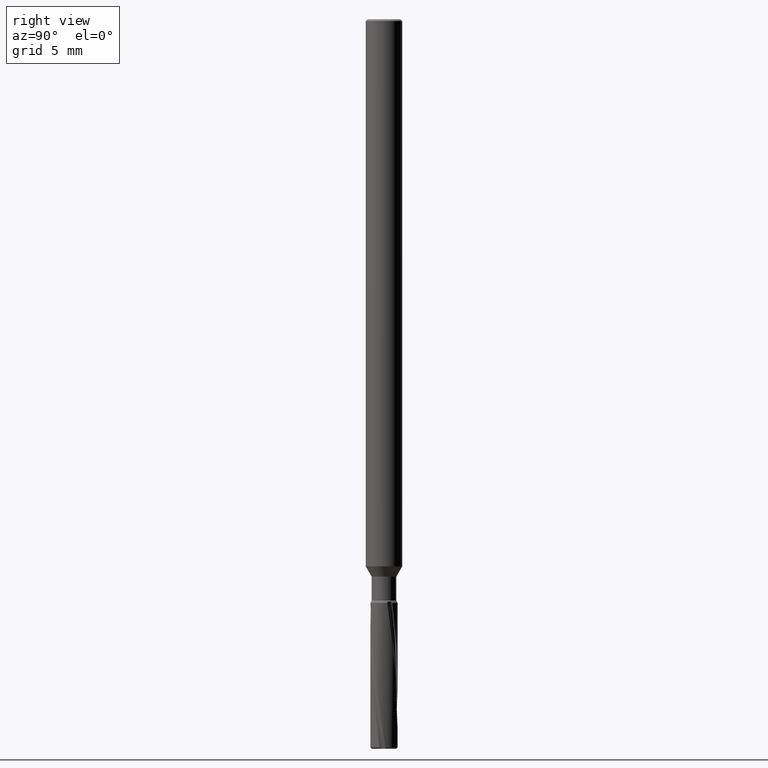
[diagram: clean part render]
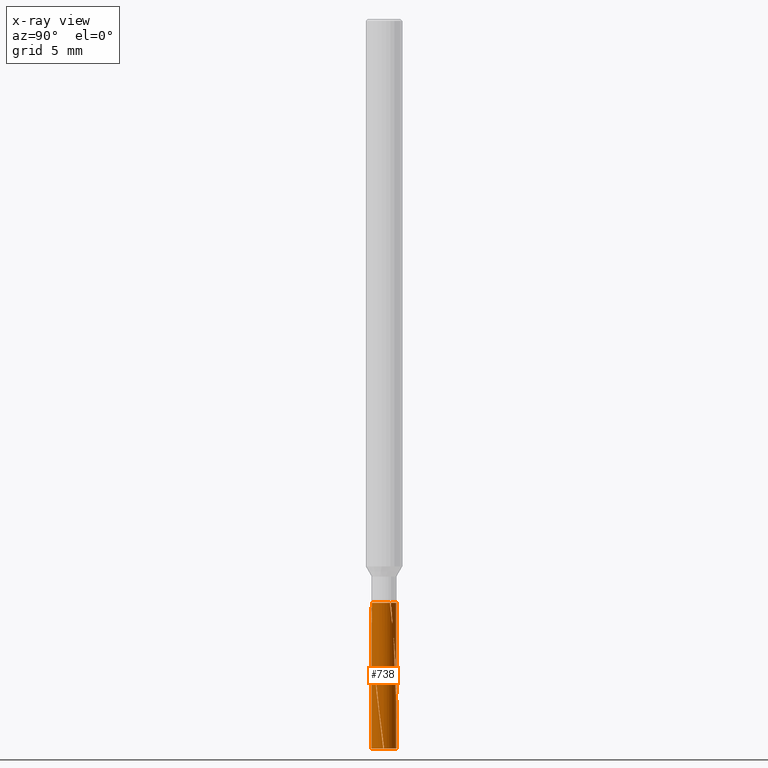
[diagram: x-ray — body ghosted, one internal face saturated and labeled with its STEP entity id]
A machine part, right view, then the same camera in x-ray: the body is ghosted and one INTERNAL B-rep face — a face not visible from any outside direction — is saturated and labeled: STEP entity #738.
In plain terms, the highlighted cylindrical surface (edge-blend (fillet) strip) has radius 0.675 mm, axis along (-0, -0, 1).
Its self-contained STEP definition (entity closure, byte-faithful):
#424=VERTEX_POINT('',#1221);
#436=EDGE_CURVE('',#546,#1036,#1234,.T.);
#478=VERTEX_POINT('',#1279);
#490=EDGE_CURVE('',#424,#940,#1293,.T.);
#512=VERTEX_POINT('',#1318);
#546=VERTEX_POINT('',#1356);
#554=EDGE_CURVE('',#776,#940,#1365,.T.);
#598=VERTEX_POINT('',#1414);
#682=EDGE_CURVE('',#716,#1156,#1501,.T.);
#716=VERTEX_POINT('',#1540);
#730=VERTEX_POINT('',#1554);
#738=ADVANCED_FACE('',(#1563),#1564,.T.);
#756=EDGE_CURVE('',#424,#730,#1584,.T.);
#776=VERTEX_POINT('',#1605);
#782=EDGE_CURVE('',#1156,#1040,#1612,.T.);
#844=EDGE_CURVE('',#730,#478,#1679,.T.);
#940=VERTEX_POINT('',#1784);
#962=EDGE_CURVE('',#716,#478,#1806,.T.);
#1036=VERTEX_POINT('',#1890);
#1038=EDGE_CURVE('',#1036,#598,#1892,.T.);
#1040=VERTEX_POINT('',#1894);
#1062=VERTEX_POINT('',#1917);
#1094=EDGE_CURVE('',#776,#546,#1954,.T.);
#1106=EDGE_CURVE('',#598,#512,#1967,.T.);
#1156=VERTEX_POINT('',#2021);
#1160=EDGE_CURVE('',#1062,#1040,#2025,.T.);
#1186=EDGE_CURVE('',#512,#1062,#2055,.T.);
#1221=CARTESIAN_POINT('',(-7.28329051414029E-016,0.675,-37.5329262624349));
#1234=B_SPLINE_CURVE_WITH_KNOTS('',3,(#2097,#2098,#2099,#2100,#2101,#2102,#2103,#2104,#2105,#2106,#2107,#2108,#2109,#2110,#2111,#2112,#2113,#2114,#2115,#2116),.UNSPECIFIED.,.F.,.F.,(4,2,2,2,2,2,2,2,2,4),(0.0,0.0326887155101819,0.0436933603518113,0.0505271209389443,0.0567795461319745,0.0648827188236405,0.0818648894988558,0.121388327816613,0.274718887182162,0.569397161582268),.UNSPECIFIED.);
#1279=CARTESIAN_POINT('',(0.674990133403159,0.00364963126717744,-40.0));
#1293=B_SPLINE_CURVE_WITH_KNOTS('',3,(#2364,#2365,#2366,#2367,#2368,#2369,#2370,#2371,#2372,#2373,#2374,#2375,#2376,#2377,#2378,#2379,#2380,#2381,#2382,#2383,#2384,#2385,#2386,#2387,#2388,#2389,#2390,#2391,#2392,#2393,#2394,#2395,#2396,#2397,#2398,#2399,#2400,#2401,#2402,#2403,#2404,#2405,#2406,#2407,#2408,#2409,#2410,#2411,#2412,#2413,#2414,#2415,#2416,#2417,#2418,#2419,#2420,#2421,#2422,#2423,#2424,#2425,#2426,#2427),.UNSPECIFIED.,.F.,.F.,(4,2,2,2,2,2,2,2,2,2,2,2,2,2,2,2,2,2,2,2,2,2,2,2,2,2,2,2,2,2,2,4),(0.0,0.18688365082122,1.3727734235625,1.61110717804749,1.68792852125721,3.36986477059284,4.53313753460929,4.74420470655328,4.80386000082122,5.83672365668107,7.47961476231981,7.54406057368269,7.71255624952377,7.74873452194383,7.75640811296588,7.75974917333288,7.76186138992929,7.76367922971296,7.76577143902104,7.76929361014023,7.7773543054012,7.80875288426856,7.92520435699458,8.45160062297915,11.6702423036027,13.2479136617163,13.3938124384258,18.8430458293485,20.1106188462336,20.378343101451,20.5334103536752,23.8542558613937),.UNSPECIFIED.);
#1318=CARTESIAN_POINT('',(0.0348243879405621,-0.67410107699407,-32.0));
#1356=CARTESIAN_POINT('',(0.566376463425032,0.367209343124808,-32.0));
#1365=LINE('',#2694,#2695);
#1414=CARTESIAN_POINT('',(0.591460125520511,0.325268996246586,-32.0));
#1501=CIRCLE('',#3252,0.675);
#1540=CARTESIAN_POINT('',(0.674055319975229,-0.0356990982111893,-40.0));
#1554=CARTESIAN_POINT('',(-8.27571098544261E-017,0.675,-40.0));
#1563=FACE_OUTER_BOUND('',#3599,.T.);
#1564=CYLINDRICAL_SURFACE('',#3600,0.675);
#1584=LINE('',#3650,#3651);
#1605=CARTESIAN_POINT('',(-8.27571098544261E-017,0.675,-32.0));
#1612=LINE('',#3703,#3704);
#1679=CIRCLE('',#4041,0.675);
#1784=CARTESIAN_POINT('',(1.58673197800216E-017,0.675,-37.279835173833));
#1806=B_SPLINE_CURVE_WITH_KNOTS('',3,(#4744,#4745,#4746,#4747,#4748,#4749,#4750,#4751,#4752,#4753,#4754,#4755,#4756,#4757,#4758,#4759,#4760,#4761,#4762,#4763,#4764,#4765,#4766,#4767,#4768,#4769,#4770,#4771,#4772,#4773,#4774,#4775,#4776,#4777,#4778,#4779,#4780,#4781,#4782,#4783,#4784,#4785,#4786,#4787,#4788,#4789,#4790,#4791,#4792,#4793,#4794,#4795,#4796,#4797,#4798,#4799,#4800,#4801,#4802,#4803,#4804,#4805,#4806,#4807),.UNSPECIFIED.,.F.,.F.,(4,2,2,2,2,2,2,2,2,2,2,2,2,2,2,2,2,2,2,2,2,2,2,2,2,2,2,2,2,2,2,4),(0.0,0.186883650820034,1.37277342363579,1.61110717814689,1.68792852135125,3.36986476909886,4.53313753450786,4.74420470775815,4.80386000202086,5.83672365814529,7.47961477057735,7.54406057829322,7.71255625515732,7.74873452795476,7.75640811908151,7.75974917953146,7.76186139618625,7.76367923601054,7.76577144534101,7.76929361650332,7.77735431193313,7.80875289149383,7.92520436791574,8.45160065248507,11.6702425463276,13.2479140305596,13.393812828255,18.84304701219,20.1106202143737,20.378344505153,20.5334117802108,23.854257777214),.UNSPECIFIED.);
#1890=CARTESIAN_POINT('',(0.520378007290252,0.429920608401862,-32.5758084354064));
#1892=B_SPLINE_CURVE_WITH_KNOTS('',3,(#5424,#5425,#5426,#5427,#5428,#5429,#5430,#5431,#5432,#5433,#5434,#5435,#5436,#5437,#5438,#5439,#5440,#5441,#5442,#5443,#5444,#5445,#5446,#5447,#5448,#5449,#5450,#5451,#5452,#5453,#5454,#5455),.UNSPECIFIED.,.F.,.F.,(4,2,2,2,2,2,2,2,2,2,2,2,2,2,2,4),(0.0,0.648607326009277,0.738515433763604,0.777237180380298,0.785516823060001,0.790513482183709,0.794487839739592,0.798677317567517,0.805140761584447,0.818639120883314,0.85592075019587,1.03133985294063,1.48318396346145,1.96540922597763,2.2872874393332,2.49005612077731),.UNSPECIFIED.);
#1894=CARTESIAN_POINT('',(1.03884199502532E-010,-0.675,-32.2620542307267));
#1917=CARTESIAN_POINT('',(0.112133164841339,-0.665620878085014,-32.5758084354063));
#1954=CIRCLE('',#5598,0.675);
#1967=CIRCLE('',#5623,0.675);
#2021=CARTESIAN_POINT('',(8.25647479115948E-017,-0.675,-40.0));
#2025=B_SPLINE_CURVE_WITH_KNOTS('',3,(#5862,#5863,#5864,#5865,#5866,#5867,#5868,#5869,#5870,#5871,#5872,#5873,#5874,#5875,#5876,#5877,#5878,#5879,#5880,#5881,#5882,#5883,#5884,#5885,#5886,#5887,#5888,#5889,#5890,#5891,#5892,#5893),.UNSPECIFIED.,.F.,.F.,(4,2,2,2,2,2,2,2,2,2,2,2,2,2,2,4),(0.0,0.648607326049933,0.738515433743711,0.777237180492468,0.78551682324469,0.790513482428083,0.794487840020776,0.798677317882341,0.805140761949093,0.818639120784048,0.855920746827237,1.03133983486009,1.48318390752518,1.96540913078921,2.28728731825914,2.49005598333297),.UNSPECIFIED.);
#2055=B_SPLINE_CURVE_WITH_KNOTS('',3,(#6333,#6334,#6335,#6336,#6337,#6338,#6339,#6340,#6341,#6342,#6343,#6344,#6345,#6346,#6347,#6348,#6349,#6350,#6351,#6352),.UNSPECIFIED.,.F.,.F.,(4,2,2,2,2,2,2,2,2,4),(0.0,0.0326887155095948,0.0436933603510671,0.050527120937797,0.0567795461317392,0.0648827188332502,0.081864889526675,0.12138832788119,0.274718887386551,0.569397162141511),.UNSPECIFIED.);
#2097=CARTESIAN_POINT('',(0.566376463425034,0.367209343124805,-32.0));
#2098=CARTESIAN_POINT('',(0.564995976323239,0.369338579259881,-32.0105966325956));
#2099=CARTESIAN_POINT('',(0.563690315520645,0.37132595606166,-32.021552079504));
#2100=CARTESIAN_POINT('',(0.562082049310962,0.373750326759119,-32.0358125802805));
#2101=CARTESIAN_POINT('',(0.561683732122727,0.374348608085845,-32.0394149926998));
#2102=CARTESIAN_POINT('',(0.561050054828501,0.375297251496393,-32.0452463257773));
#2103=CARTESIAN_POINT('',(0.560809657943883,0.375656372163217,-32.047482861879));
#2104=CARTESIAN_POINT('',(0.560354092659972,0.376335546444806,-32.0517643828934));
#2105=CARTESIAN_POINT('',(0.560138259284869,0.376656710002238,-32.0538119073311));
#2106=CARTESIAN_POINT('',(0.559647122499928,0.377386200975074,-32.0585120951291));
#2107=CARTESIAN_POINT('',(0.559372706230994,0.377792813850663,-32.0611685049275));
#2108=CARTESIAN_POINT('',(0.558532457597435,0.379034991166557,-32.0693885485697));
#2109=CARTESIAN_POINT('',(0.557974069440924,0.379856389905297,-32.0749749021695));
#2110=CARTESIAN_POINT('',(0.556155672624992,0.382519221219837,-32.0935177272636));
#2111=CARTESIAN_POINT('',(0.554923692123275,0.384303193583127,-32.1066640223231));
#2112=CARTESIAN_POINT('',(0.549172236356812,0.392554198947264,-32.1700968551724));
#2113=CARTESIAN_POINT('',(0.544799316070066,0.398571730382357,-32.2249434618753));
#2114=CARTESIAN_POINT('',(0.533648759864727,0.413514687946311,-32.372772853297));
#2115=CARTESIAN_POINT('',(0.526607592468429,0.422380288092619,-32.4776281244408));
#2116=CARTESIAN_POINT('',(0.520378005573022,0.429920610480404,-32.5758084537545));
#2364=CARTESIAN_POINT('',(-0.306111334044527,0.601598579760192,-40.0));
#2365=CARTESIAN_POINT('',(-0.298917820590169,0.605258854358677,-39.9382305354738));
#2366=CARTESIAN_POINT('',(-0.291719319213028,0.608759310517538,-39.8764481988167));
#2367=CARTESIAN_POINT('',(-0.238822994271213,0.633346484182818,-39.4225768208358));
#2368=CARTESIAN_POINT('',(-0.195967696284975,0.647373069784056,-39.0492320597075));
#2369=CARTESIAN_POINT('',(-0.14539742283085,0.659211748605653,-38.6386823360381));
#2370=CARTESIAN_POINT('',(-0.137372567853746,0.660931047582401,-38.5749600697742));
#2371=CARTESIAN_POINT('',(-0.126051274432987,0.663131947416539,-38.4866034481399));
#2372=CARTESIAN_POINT('',(-0.123278530059172,0.663653086871441,-38.4650744840084));
#2373=CARTESIAN_POINT('',(-0.0595017738202448,0.675223578659836,-37.9720615934379));
#2374=CARTESIAN_POINT('',(0.00395696025746203,0.678382453767125,-37.5122904337169));
#2375=CARTESIAN_POINT('',(0.117964157105742,0.666263241627631,-36.6140669471462));
#2376=CARTESIAN_POINT('',(0.163892727554099,0.65647105069893,-36.2379621343668));
#2377=CARTESIAN_POINT('',(0.216480837816007,0.639400615349966,-35.8067246313327));
#2378=CARTESIAN_POINT('',(0.224584634863706,0.63660141321084,-35.7402800449567));
#2379=CARTESIAN_POINT('',(0.2349850713556,0.632781934746832,-35.6553431519858));
#2380=CARTESIAN_POINT('',(0.237279667707738,0.631925152842991,-35.6366252323828));
#2381=CARTESIAN_POINT('',(0.27935645629978,0.615950835300278,-35.2938862970537));
#2382=CARTESIAN_POINT('',(0.310542416166225,0.600509234232039,-35.0577617310832));
#2383=CARTESIAN_POINT('',(0.394705452248086,0.550847272012725,-34.3390366159136));
#2384=CARTESIAN_POINT('',(0.418747706971145,0.529467231842818,-34.0433306077185));
#2385=CARTESIAN_POINT('',(0.425013712081315,0.524393399237277,-33.9205030633501));
#2386=CARTESIAN_POINT('',(0.425240078359487,0.524209825339578,-33.9157648107533));
#2387=CARTESIAN_POINT('',(0.42595676554486,0.523627997489992,-33.8989923145789));
#2388=CARTESIAN_POINT('',(0.426380599603663,0.523282711811539,-33.8853702694466));
#2389=CARTESIAN_POINT('',(0.42594656981291,0.523635874866674,-33.8759983475619));
#2390=CARTESIAN_POINT('',(0.425799480832561,0.523755640083947,-33.8738351185152));
#2391=CARTESIAN_POINT('',(0.425413339040877,0.524069173432309,-33.8722877231791));
#2392=CARTESIAN_POINT('',(0.425327989616857,0.524138455279709,-33.8720157946028));
#2393=CARTESIAN_POINT('',(0.425174108484049,0.524263274592998,-33.8717214308749));
#2394=CARTESIAN_POINT('',(0.425117362025103,0.524309294172689,-33.8716335353295));
#2395=CARTESIAN_POINT('',(0.425007913317574,0.52439801353118,-33.8715280457017));
#2396=CARTESIAN_POINT('',(0.424961196705166,0.524435873726263,-33.8714962600726));
#2397=CARTESIAN_POINT('',(0.424865778102536,0.524513177931539,-33.8714644001171));
#2398=CARTESIAN_POINT('',(0.424821061556868,0.524549396185705,-33.8714614560153));
#2399=CARTESIAN_POINT('',(0.424723861169557,0.524628102785167,-33.8714784715872));
#2400=CARTESIAN_POINT('',(0.424673954839127,0.524668500762786,-33.8715014834623));
#2401=CARTESIAN_POINT('',(0.424548598737225,0.524769947257985,-33.8715840645047));
#2402=CARTESIAN_POINT('',(0.424475477892416,0.524829091522443,-33.8716602559502));
#2403=CARTESIAN_POINT('',(0.424267098438288,0.52499758471936,-33.871919786358));
#2404=CARTESIAN_POINT('',(0.424129587892179,0.52510867143224,-33.8721687708107));
#2405=CARTESIAN_POINT('',(0.423537806028128,0.525586427838193,-33.8734090970931));
#2406=CARTESIAN_POINT('',(0.423031206443767,0.525994301688907,-33.8750689581805));
#2407=CARTESIAN_POINT('',(0.420688413174049,0.527874850605052,-33.8841368354343));
#2408=CARTESIAN_POINT('',(0.418480231566172,0.529625273913401,-33.8968536262749));
#2409=CARTESIAN_POINT('',(0.4102037880035,0.536126968582766,-33.946813206353));
#2410=CARTESIAN_POINT('',(0.401683743638111,0.542518217391684,-34.0107245417512));
#2411=CARTESIAN_POINT('',(0.360595458569241,0.572273443733052,-34.3261625918786));
#2412=CARTESIAN_POINT('',(0.321354858673633,0.595442679006738,-34.6976107981025));
#2413=CARTESIAN_POINT('',(0.257753486508225,0.624272169688859,-35.2767112583261));
#2414=CARTESIAN_POINT('',(0.235349511335088,0.633192476714737,-35.470876817268));
#2415=CARTESIAN_POINT('',(0.207940199867554,0.642177417039983,-35.6920013050224));
#2416=CARTESIAN_POINT('',(0.205609421213422,0.642927517298415,-35.7107161459186));
#2417=CARTESIAN_POINT('',(0.115835148990476,0.671278022506067,-36.4284729553327));
#2418=CARTESIAN_POINT('',(0.0226615488367514,0.681641448229023,-37.0905867826843));
#2419=CARTESIAN_POINT('',(-0.0968964665145076,0.668394639771295,-38.0396906481326));
#2420=CARTESIAN_POINT('',(-0.119207044805259,0.664777176005508,-38.2193497675649));
#2421=CARTESIAN_POINT('',(-0.146058366604559,0.659025707792346,-38.4325555668686));
#2422=CARTESIAN_POINT('',(-0.150760133340368,0.657966514252964,-38.4697615290123));
#2423=CARTESIAN_POINT('',(-0.158217938765753,0.656201177183451,-38.5284755362165));
#2424=CARTESIAN_POINT('',(-0.160961095388814,0.655533810029514,-38.5500083440551));
#2425=CARTESIAN_POINT('',(-0.222661859132236,0.640108404858419,-39.0326663757317));
#2426=CARTESIAN_POINT('',(-0.281400607310564,0.617373277056994,-39.4674837070184));
#2427=CARTESIAN_POINT('',(-0.340655740093408,0.582733787197389,-40.0));
#2694=CARTESIAN_POINT('',(-8.27571098544261E-017,0.675,-36.0));
#2695=VECTOR('',#6525,1.0);
#3252=AXIS2_PLACEMENT_3D('',#6647,#6648,#6649);
#3599=EDGE_LOOP('',(#6714,#6715,#6716,#6717,#6718,#6719,#6720,#6721,#6722,#6723,#6724,#6725,#6726));
#3600=AXIS2_PLACEMENT_3D('',#6727,#6728,#6729);
#3650=CARTESIAN_POINT('',(-8.27571098544261E-017,0.675,-36.0));
#3651=VECTOR('',#6756,1.0);
#3703=CARTESIAN_POINT('',(8.25647479115948E-017,-0.675,-36.0));
#3704=VECTOR('',#6796,1.0);
#4041=AXIS2_PLACEMENT_3D('',#6861,#6862,#6863);
#4744=CARTESIAN_POINT('',(0.674055319975229,-0.0356990982111892,-40.0));
#4745=CARTESIAN_POINT('',(0.673628454035167,-0.0437590009043197,-39.9382305354742));
#4746=CARTESIAN_POINT('',(0.673060687304869,-0.051743314047077,-39.8764481988051));
#4747=CARTESIAN_POINT('',(0.667905641836021,-0.109846462038644,-39.4225768208829));
#4748=CARTESIAN_POINT('',(0.658625372300927,-0.153973531589112,-39.0492320596999));
#4749=CARTESIAN_POINT('',(0.643592832181946,-0.203688012483776,-38.6386823360607));
#4750=CARTESIAN_POINT('',(0.641069361283564,-0.211497390245392,-38.5749600697853));
#4751=CARTESIAN_POINT('',(0.637314749740258,-0.222402367869913,-38.4866034481398));
#4752=CARTESIAN_POINT('',(0.636379697560281,-0.225064204663089,-38.4650744840099));
#4753=CARTESIAN_POINT('',(0.614511659280307,-0.286081741585227,-37.9720615938105));
#4754=CARTESIAN_POINT('',(0.585517958361355,-0.342618054897545,-37.5122904344708));
#4755=CARTESIAN_POINT('',(0.518018814373472,-0.435291577527565,-36.6140669479682));
#4756=CARTESIAN_POINT('',(0.486574243044368,-0.47017079083135,-36.2379621351788));
#4757=CARTESIAN_POINT('',(0.445496757278382,-0.507178212570704,-35.806724632341));
#4758=CARTESIAN_POINT('',(0.439020678541381,-0.512796705657359,-35.7402800454316));
#4759=CARTESIAN_POINT('',(0.430512694867017,-0.51989400867897,-35.6553431519678));
#4760=CARTESIAN_POINT('',(0.428623401798339,-0.521452796458081,-35.636625232381));
#4761=CARTESIAN_POINT('',(0.393750842692377,-0.549905205525109,-35.2938862969554));
#4762=CARTESIAN_POINT('',(0.364785043962838,-0.569192238473228,-35.057761731033));
#4763=CARTESIAN_POINT('',(0.279695004809528,-0.617248584796146,-34.3390366139276));
#4764=CARTESIAN_POINT('',(0.249158219498334,-0.627379768037192,-34.0433306050002));
#4765=CARTESIAN_POINT('',(0.241631149210895,-0.630269371262615,-33.9205030622308));
#4766=CARTESIAN_POINT('',(0.24135898643684,-0.630373623252039,-33.9157648099914));
#4767=CARTESIAN_POINT('',(0.24049676517583,-0.63070337862482,-33.8989923142791));
#4768=CARTESIAN_POINT('',(0.239985821990542,-0.630897786842482,-33.8853702693206));
#4769=CARTESIAN_POINT('',(0.240508685063723,-0.630698487545111,-33.8759983475305));
#4770=CARTESIAN_POINT('',(0.240685949274967,-0.630630987359987,-33.8738351184968));
#4771=CARTESIAN_POINT('',(0.241150548015324,-0.630453345433142,-33.8722877231705));
#4772=CARTESIAN_POINT('',(0.241253222567292,-0.630414071587408,-33.872015794596));
#4773=CARTESIAN_POINT('',(0.24143825983051,-0.630343216273638,-33.8717214308697));
#4774=CARTESIAN_POINT('',(0.241506487184485,-0.630317082188683,-33.8716335353264));
#4775=CARTESIAN_POINT('',(0.241638044755761,-0.630266656507083,-33.8715280457004));
#4776=CARTESIAN_POINT('',(0.241694190952672,-0.630245128831512,-33.8714962600718));
#4777=CARTESIAN_POINT('',(0.241808847659068,-0.630201146000472,-33.8714644001171));
#4778=CARTESIAN_POINT('',(0.241862571859559,-0.630180529463241,-33.8714614560152));
#4779=CARTESIAN_POINT('',(0.241979333968731,-0.630135704757944,-33.8714784715879));
#4780=CARTESIAN_POINT('',(0.242039272808893,-0.630112683596765,-33.8715014834632));
#4781=CARTESIAN_POINT('',(0.242189806102885,-0.630054845275185,-33.8715840645071));
#4782=CARTESIAN_POINT('',(0.242277586961518,-0.630021092897985,-33.8716602559539));
#4783=CARTESIAN_POINT('',(0.24252769607986,-0.629924877594623,-33.8719197863661));
#4784=CARTESIAN_POINT('',(0.24269265527014,-0.629861333324131,-33.8721687708237));
#4785=CARTESIAN_POINT('',(0.243402295392121,-0.629587713397176,-33.8734090971243));
#4786=CARTESIAN_POINT('',(0.244008824305237,-0.6293529222111,-33.8750689582336));
#4787=CARTESIAN_POINT('',(0.246808824109833,-0.628264278167947,-33.8841368356366));
#4788=CARTESIAN_POINT('',(0.249428826011955,-0.627227148435017,-33.8968536267519));
#4789=CARTESIAN_POINT('',(0.259197680710279,-0.623310385322759,-33.9468132078602));
#4790=CARTESIAN_POINT('',(0.268992686884334,-0.619127434790213,-34.0107245444969));
#4791=CARTESIAN_POINT('',(0.315305613533228,-0.598421548255565,-34.3261626107848));
#4792=CARTESIAN_POINT('',(0.354991061324805,-0.576022808139725,-34.6976108388261));
#4793=CARTESIAN_POINT('',(0.41175881796307,-0.535357149466883,-35.27671129368));
#4794=CARTESIAN_POINT('',(0.430686016331254,-0.520414892466914,-35.4708768344869));
#4795=CARTESIAN_POINT('',(0.452171857364598,-0.501170203707833,-35.6920013091966));
#4796=CARTESIAN_POINT('',(0.453986852568384,-0.499526740311518,-35.7107161500735));
#4797=CARTESIAN_POINT('',(0.523426246329142,-0.435955192526725,-36.4284729590141));
#4798=CARTESIAN_POINT('',(0.57898803623309,-0.360446200708428,-37.0905867861222));
#4799=CARTESIAN_POINT('',(0.627294971142816,-0.250282518118638,-38.0396906500787));
#4800=CARTESIAN_POINT('',(0.635317444755175,-0.22915225867961,-38.2193497693385));
#4801=CARTESIAN_POINT('',(0.643762188038544,-0.203022597849531,-38.4325555679345));
#4802=CARTESIAN_POINT('',(0.645195782872774,-0.198421151708962,-38.4697615295469));
#4803=CARTESIAN_POINT('',(0.647395858817004,-0.191079834286156,-38.5284755362167));
#4804=CARTESIAN_POINT('',(0.648189480219602,-0.188370507386954,-38.5500083440561));
#4805=CARTESIAN_POINT('',(0.66568106934982,-0.127223375965522,-39.0326663757419));
#4806=CARTESIAN_POINT('',(0.675361245204263,-0.0649865639527777,-39.4674837070526));
#4807=CARTESIAN_POINT('',(0.674990133403159,0.00364963126717752,-40.0));
#5424=CARTESIAN_POINT('',(0.520378007290252,0.429920608401862,-32.5758084354064));
#5425=CARTESIAN_POINT('',(0.506726421196505,0.446444554984053,-32.7909458085301));
#5426=CARTESIAN_POINT('',(0.495992983837324,0.457838465282403,-33.0121907906789));
#5427=CARTESIAN_POINT('',(0.496237454986139,0.457573371382949,-33.0918196044855));
#5428=CARTESIAN_POINT('',(0.496475291163137,0.457315792943366,-33.0987491276987));
#5429=CARTESIAN_POINT('',(0.497124241821415,0.456609867957342,-33.10495280417));
#5430=CARTESIAN_POINT('',(0.497394127681505,0.456316132864191,-33.106678584849));
#5431=CARTESIAN_POINT('',(0.497866045490453,0.455800851137778,-33.1078928541567));
#5432=CARTESIAN_POINT('',(0.497969255135456,0.455688111109924,-33.1081110204253));
#5433=CARTESIAN_POINT('',(0.498167820334405,0.455471003516935,-33.1083771859819));
#5434=CARTESIAN_POINT('',(0.498252234077065,0.455378667589898,-33.108461353768));
#5435=CARTESIAN_POINT('',(0.498422023224763,0.45519281541117,-33.1085539214677));
#5436=CARTESIAN_POINT('',(0.498499614487396,0.455107842657233,-33.1085721040552));
#5437=CARTESIAN_POINT('',(0.498663992458002,0.454927728639257,-33.1085614246552));
#5438=CARTESIAN_POINT('',(0.498745835682226,0.454837998408613,-33.108530294788));
#5439=CARTESIAN_POINT('',(0.498944189829844,0.454620421170581,-33.1084089936309));
#5440=CARTESIAN_POINT('',(0.499056893980196,0.45449668702993,-33.108294959805));
#5441=CARTESIAN_POINT('',(0.499364913819147,0.45415831885192,-33.1079133235786));
#5442=CARTESIAN_POINT('',(0.499563021476403,0.453940367494444,-33.1075564630619));
#5443=CARTESIAN_POINT('',(0.500230496702489,0.45320523123014,-33.1061504309028));
#5444=CARTESIAN_POINT('',(0.500707098619336,0.452678433906856,-33.1046841748268));
#5445=CARTESIAN_POINT('',(0.503010465397714,0.450126105880397,-33.0967135542835));
#5446=CARTESIAN_POINT('',(0.505496763575403,0.447348297542147,-33.0839982701566));
#5447=CARTESIAN_POINT('',(0.51664240233982,0.434574227253531,-33.0163882243357));
#5448=CARTESIAN_POINT('',(0.529029264263422,0.419769530440794,-32.9258199081179));
#5449=CARTESIAN_POINT('',(0.555289438345669,0.384441263488902,-32.6839471787144));
#5450=CARTESIAN_POINT('',(0.566678770468502,0.36709694809181,-32.5522376138222));
#5451=CARTESIAN_POINT('',(0.580754108705811,0.344188180938172,-32.3412662222957));
#5452=CARTESIAN_POINT('',(0.585537278499433,0.335869028956411,-32.2522633210283));
#5453=CARTESIAN_POINT('',(0.590386867190881,0.327235380378968,-32.1155449827957));
#5454=CARTESIAN_POINT('',(0.592004207105435,0.324279653375836,-32.0515185355069));
#5455=CARTESIAN_POINT('',(0.591460125520511,0.325268996246587,-32.0));
#5598=AXIS2_PLACEMENT_3D('',#7118,#7119,#7120);
#5623=AXIS2_PLACEMENT_3D('',#7128,#7129,#7130);
#5862=CARTESIAN_POINT('',(0.112133164841339,-0.665620878085014,-32.5758084354063));
#5863=CARTESIAN_POINT('',(0.133269115400493,-0.662060231016751,-32.7909458085435));
#5864=CARTESIAN_POINT('',(0.148503249849021,-0.658461756742394,-33.0121907907223));
#5865=CARTESIAN_POINT('',(0.148151436219296,-0.658540928018934,-33.0918196044991));
#5866=CARTESIAN_POINT('',(0.147809448658512,-0.658618110970392,-33.0987491277063));
#5867=CARTESIAN_POINT('',(0.146873624357259,-0.658827156233485,-33.1049528041803));
#5868=CARTESIAN_POINT('',(0.146484299374504,-0.65891401669788,-33.1066785848518));
#5869=CARTESIAN_POINT('',(0.145802093406923,-0.659065068645262,-33.1078928541564));
#5870=CARTESIAN_POINT('',(0.145652852856346,-0.659098080805808,-33.1081110204249));
#5871=CARTESIAN_POINT('',(0.145365549565688,-0.659161489515977,-33.1083771859819));
#5872=CARTESIAN_POINT('',(0.145243377436014,-0.659188425997997,-33.1084613537678));
#5873=CARTESIAN_POINT('',(0.144997530154522,-0.659242541623719,-33.1085539214674));
#5874=CARTESIAN_POINT('',(0.144885145959508,-0.659267251251338,-33.1085721040551));
#5875=CARTESIAN_POINT('',(0.144646973658812,-0.659319549740773,-33.1085614246553));
#5876=CARTESIAN_POINT('',(0.144528343387369,-0.659345562936778,-33.108530294788));
#5877=CARTESIAN_POINT('',(0.144240738898749,-0.659408554048413,-33.1084089936312));
#5878=CARTESIAN_POINT('',(0.144077229915161,-0.659444291635251,-33.1082949598064));
#5879=CARTESIAN_POINT('',(0.143630184567688,-0.659541860549467,-33.1079133235887));
#5880=CARTESIAN_POINT('',(0.143342379330476,-0.659604451133791,-33.1075564630838));
#5881=CARTESIAN_POINT('',(0.142371995022227,-0.659814933507097,-33.1061504309034));
#5882=CARTESIAN_POINT('',(0.141677474198931,-0.65996428421299,-33.104684174826));
#5883=CARTESIAN_POINT('',(0.138315409907685,-0.660682894342452,-33.0967135543045));
#5884=CARTESIAN_POINT('',(0.134666608237546,-0.661447187555274,-33.083998270207));
#5885=CARTESIAN_POINT('',(0.11803111950309,-0.664712558717547,-33.0163882245213));
#5886=CARTESIAN_POINT('',(0.0990164450378821,-0.66803754740578,-32.9258199084685));
#5887=CARTESIAN_POINT('',(0.0552911813744011,-0.673115391796923,-32.6839471793414));
#5888=CARTESIAN_POINT('',(0.0345758975464194,-0.674306685053075,-32.5522376143731));
#5889=CARTESIAN_POINT('',(0.00769865407260034,-0.675041901960227,-32.3412662227525));
#5890=CARTESIAN_POINT('',(-0.0018975278020573,-0.675024672521713,-32.2522633213347));
#5891=CARTESIAN_POINT('',(-0.0117992811637075,-0.67490771523765,-32.1155449829269));
#5892=CARTESIAN_POINT('',(-0.0151676857999766,-0.674830509188465,-32.0515185355592));
#5893=CARTESIAN_POINT('',(-0.0140388489472463,-0.674853992149588,-32.0));
#6333=CARTESIAN_POINT('',(0.0348243879405616,-0.67410107699407,-32.0));
#6334=CARTESIAN_POINT('',(0.0373586040750447,-0.673970158161859,-32.0105966325954));
#6335=CARTESIAN_POINT('',(0.0397325532736679,-0.673833111138971,-32.0215520795043));
#6336=CARTESIAN_POINT('',(0.0426362529907447,-0.673652497094064,-32.0358125802809));
#6337=CARTESIAN_POINT('',(0.0433535384124647,-0.673606684953648,-32.0394149927006));
#6338=CARTESIAN_POINT('',(0.044491926352054,-0.673532226024334,-32.045246325777));
#6339=CARTESIAN_POINT('',(0.0449231324148124,-0.67350359654868,-32.0474828618785));
#6340=CARTESIAN_POINT('',(0.0457390972385306,-0.673448652580504,-32.0517643828945));
#6341=CARTESIAN_POINT('',(0.0461251497258146,-0.67342231717338,-32.0538119073335));
#6342=CARTESIAN_POINT('',(0.0470024758321657,-0.673361725727336,-32.0585120951293));
#6343=CARTESIAN_POINT('',(0.0474918210463204,-0.673327380705027,-32.0611685049272));
#6344=CARTESIAN_POINT('',(0.0489877024748277,-0.673220792700805,-32.0693885485703));
#6345=CARTESIAN_POINT('',(0.0499782487275405,-0.673147913741459,-32.0749749021705));
#6346=CARTESIAN_POINT('',(0.0531935266993573,-0.672904551562011,-32.0935177272615));
#6347=CARTESIAN_POINT('',(0.0553544823362306,-0.672729611332225,-32.1066640223194));
#6348=CARTESIAN_POINT('',(0.0653757904708557,-0.671874207211865,-32.1700968551636));
#6349=CARTESIAN_POINT('',(0.0727735857065278,-0.671095912872204,-32.2249434618774));
#6350=CARTESIAN_POINT('',(0.091289844662712,-0.668910726714642,-32.3727728532594));
#6351=CARTESIAN_POINT('',(0.1024882633073,-0.667245696950487,-32.4776281243952));
#6352=CARTESIAN_POINT('',(0.112133167500023,-0.665620877637121,-32.5758084537544));
#6525=DIRECTION('',(0.0,0.0,-1.0));
#6647=CARTESIAN_POINT('',(0.0,0.0,-40.0));
#6648=DIRECTION('',(0.0,0.0,-1.0));
#6649=DIRECTION('',(0.0,1.0,0.0));
#6714=ORIENTED_EDGE('',*,*,#554,.F.);
#6715=ORIENTED_EDGE('',*,*,#1094,.T.);
#6716=ORIENTED_EDGE('',*,*,#436,.T.);
#6717=ORIENTED_EDGE('',*,*,#1038,.T.);
#6718=ORIENTED_EDGE('',*,*,#1106,.T.);
#6719=ORIENTED_EDGE('',*,*,#1186,.T.);
#6720=ORIENTED_EDGE('',*,*,#1160,.T.);
#6721=ORIENTED_EDGE('',*,*,#782,.F.);
#6722=ORIENTED_EDGE('',*,*,#682,.F.);
#6723=ORIENTED_EDGE('',*,*,#962,.T.);
#6724=ORIENTED_EDGE('',*,*,#844,.F.);
#6725=ORIENTED_EDGE('',*,*,#756,.F.);
#6726=ORIENTED_EDGE('',*,*,#490,.T.);
#6727=CARTESIAN_POINT('',(0.0,0.0,-36.0));
#6728=DIRECTION('',(-0.0,-0.0,1.0));
#6729=DIRECTION('',(0.0,1.0,0.0));
#6756=DIRECTION('',(0.0,0.0,-1.0));
#6796=DIRECTION('',(-0.0,-0.0,1.0));
#6861=CARTESIAN_POINT('',(0.0,0.0,-40.0));
#6862=DIRECTION('',(0.0,0.0,-1.0));
#6863=DIRECTION('',(0.0,1.0,0.0));
#7118=CARTESIAN_POINT('',(0.0,0.0,-32.0));
#7119=DIRECTION('',(0.0,0.0,-1.0));
#7120=DIRECTION('',(0.0,1.0,0.0));
#7128=CARTESIAN_POINT('',(0.0,0.0,-32.0));
#7129=DIRECTION('',(0.0,0.0,-1.0));
#7130=DIRECTION('',(0.0,1.0,0.0));